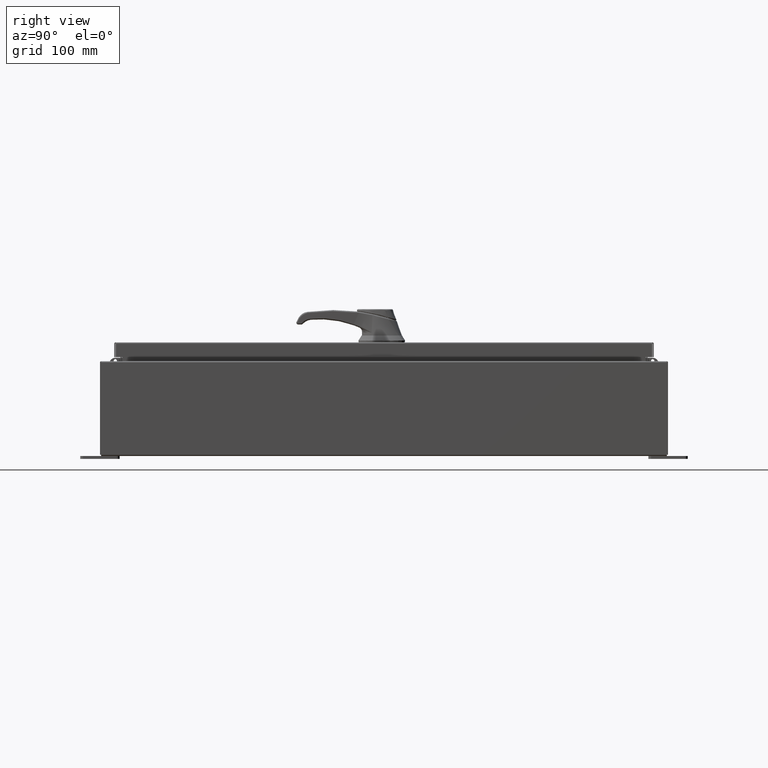
[diagram: clean part render]
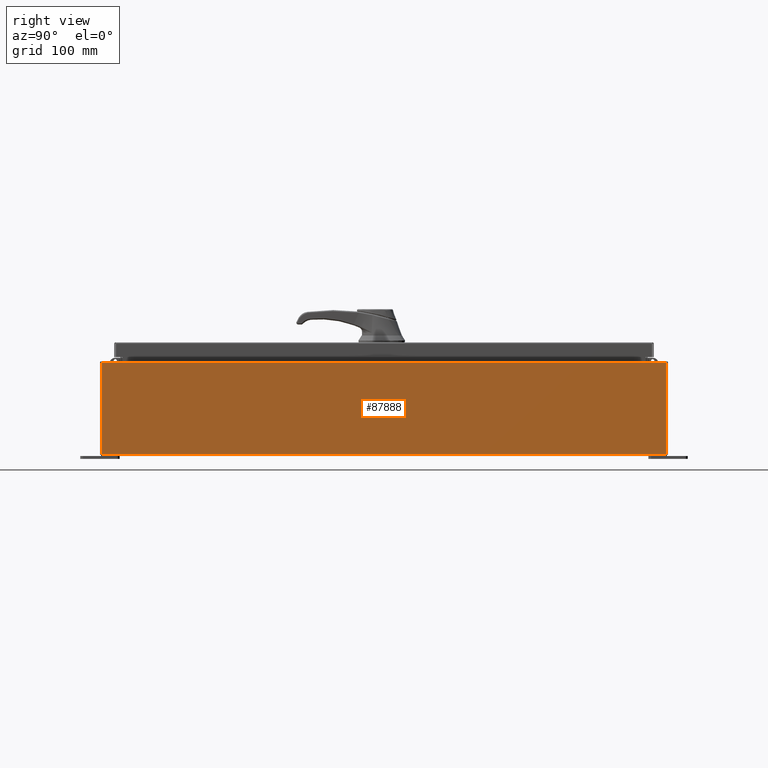
[diagram: same view with one face highlighted and labeled with its STEP entity id]
A machine part, right view. The second image highlights one B-rep face of the part: STEP entity #87888.
In plain terms, the highlighted planar face has unit normal (-1, 0, 0).
Its self-contained STEP definition (entity closure, byte-faithful):
#2113 = CARTESIAN_POINT ( 'NONE',  ( 12.00000000000002100, -17.92530000000000000, 5.837600000000001000 ) ) ;
#6317 = CARTESIAN_POINT ( 'NONE',  ( 12.00000000000000200, 0.0000000000000000000, -4.009536492811464800E-014 ) ) ;
#10149 = EDGE_CURVE ( 'NONE', #117238, #35334, #82363, .T. ) ;
#13802 = LINE ( 'NONE', #98164, #55695 ) ;
#15071 = DIRECTION ( 'NONE',  ( -2.023619111371655800E-031, -1.000000000000000000, -6.096072018129156600E-017 ) ) ;
#23527 = DIRECTION ( 'NONE',  ( -3.319545939341922800E-015, 0.0000000000000000000, -1.000000000000000000 ) ) ;
#24495 = VECTOR ( 'NONE', #23527, 39.37007874015748100 ) ;
#26720 = ORIENTED_EDGE ( 'NONE', *, *, #104500, .T. ) ;
#30651 = EDGE_LOOP ( 'NONE', ( #40201, #26720, #48976, #66346 ) ) ;
#31674 = DIRECTION ( 'NONE',  ( -0.0000000000000000000, -1.000000000000000000, -0.0000000000000000000 ) ) ;
#34728 = LINE ( 'NONE', #46336, #88254 ) ;
#35334 = VERTEX_POINT ( 'NONE', #41152 ) ;
#40201 = ORIENTED_EDGE ( 'NONE', *, *, #68202, .T. ) ;
#41152 = CARTESIAN_POINT ( 'NONE',  ( 12.00000000000000200, -17.92530000000000400, 0.01300000000000095200 ) ) ;
#46336 = CARTESIAN_POINT ( 'NONE',  ( 12.00000000000000200, 17.92529999999999600, -4.009536492811464800E-014 ) ) ;
#46998 = VERTEX_POINT ( 'NONE', #2113 ) ;
#48976 = ORIENTED_EDGE ( 'NONE', *, *, #10149, .F. ) ;
#52947 = CARTESIAN_POINT ( 'NONE',  ( 12.00000000000002100, 17.92530000000000000, 5.837600000000001000 ) ) ;
#54916 = DIRECTION ( 'NONE',  ( -1.000000000000000000, 0.0000000000000000000, 3.319545939341922000E-015 ) ) ;
#55695 = VECTOR ( 'NONE', #31674, 39.37007874015748100 ) ;
#55866 = DIRECTION ( 'NONE',  ( 3.319545939341922800E-015, 0.0000000000000000000, 1.000000000000000000 ) ) ;
#66346 = ORIENTED_EDGE ( 'NONE', *, *, #68597, .T. ) ;
#66349 = CARTESIAN_POINT ( 'NONE',  ( 12.00000000000000200, -17.92530000000000400, 0.01299999999999986400 ) ) ;
#68202 = EDGE_CURVE ( 'NONE', #69948, #46998, #13802, .T. ) ;
#68597 = EDGE_CURVE ( 'NONE', #117238, #69948, #34728, .T. ) ;
#69948 = VERTEX_POINT ( 'NONE', #52947 ) ;
#76359 = FACE_OUTER_BOUND ( 'NONE', #30651, .T. ) ;
#82363 = LINE ( 'NONE', #66349, #107544 ) ;
#87296 = CARTESIAN_POINT ( 'NONE',  ( 12.00000000000000200, 17.92529999999999600, 0.01300000000000205000 ) ) ;
#87888 = ADVANCED_FACE ( 'NONE', ( #76359 ), #111675, .F. ) ;
#88254 = VECTOR ( 'NONE', #55866, 39.37007874015748100 ) ;
#98164 = CARTESIAN_POINT ( 'NONE',  ( 12.00000000000002100, 17.92530000000000000, 5.837600000000001000 ) ) ;
#100410 = LINE ( 'NONE', #118203, #24495 ) ;
#104500 = EDGE_CURVE ( 'NONE', #46998, #35334, #100410, .T. ) ;
#107544 = VECTOR ( 'NONE', #15071, 39.37007874015748100 ) ;
#111675 = PLANE ( 'NONE',  #117128 ) ;
#117128 = AXIS2_PLACEMENT_3D ( 'NONE', #6317, #54916, #121098 ) ;
#117238 = VERTEX_POINT ( 'NONE', #87296 ) ;
#118203 = CARTESIAN_POINT ( 'NONE',  ( 12.00000000000000200, -17.92530000000000400, -4.009536492811464800E-014 ) ) ;
#121098 = DIRECTION ( 'NONE',  ( 3.319545939341922000E-015, 0.0000000000000000000, 1.000000000000000000 ) ) ;